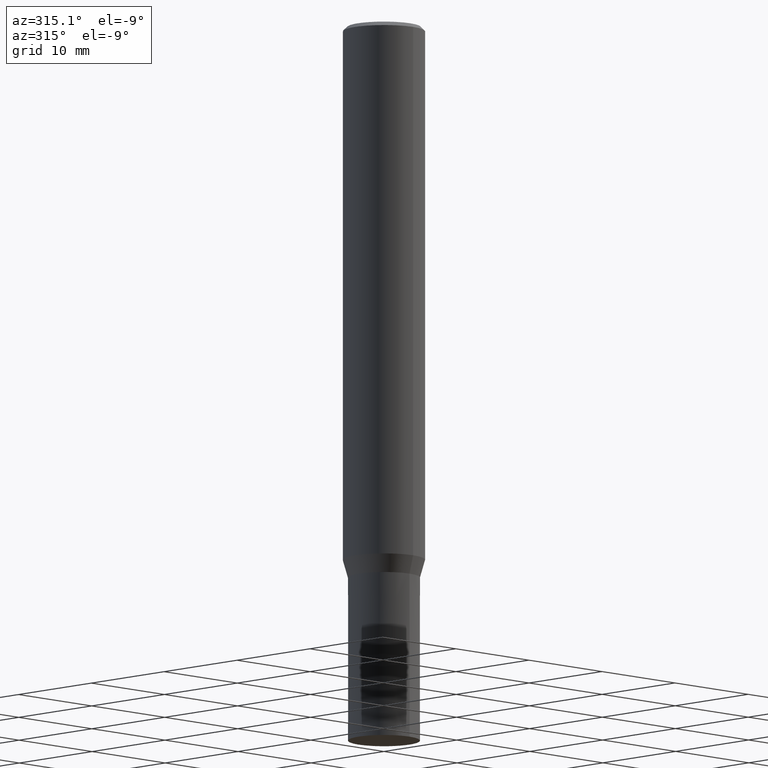
[diagram: clean part render]
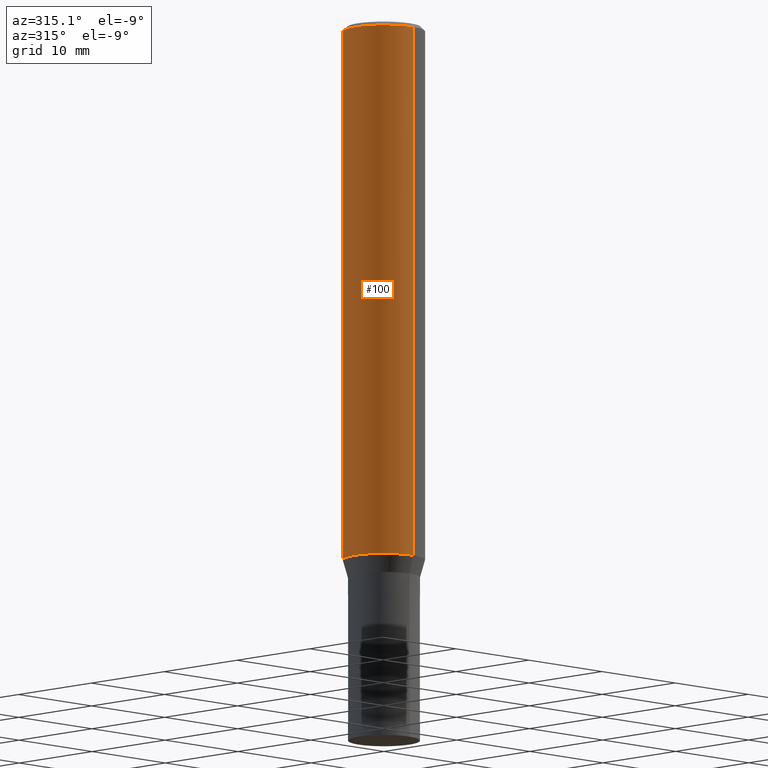
[diagram: same view with one face highlighted and labeled with its STEP entity id]
A machine part, auxiliary view. The second image highlights one B-rep face of the part: STEP entity #100.
In plain terms, the highlighted cylindrical surface (partial cylindrical patch) has radius 4 mm, axis along (-0, -0, 1).
Its self-contained STEP definition (entity closure, byte-faithful):
#92=VERTEX_POINT('',#214);
#100=ADVANCED_FACE('',(#224),#225,.T.);
#108=EDGE_CURVE('',#120,#172,#234,.T.);
#112=EDGE_CURVE('',#138,#172,#239,.T.);
#120=VERTEX_POINT('',#247);
#138=VERTEX_POINT('',#266);
#164=EDGE_CURVE('',#92,#138,#295,.T.);
#166=EDGE_CURVE('',#120,#92,#297,.T.);
#172=VERTEX_POINT('',#304);
#214=CARTESIAN_POINT('',(4.89842541528951E-016,-4.0,-0.399999999999999));
#224=FACE_OUTER_BOUND('',#355,.T.);
#225=CYLINDRICAL_SURFACE('',#356,4.0);
#234=CIRCLE('',#368,4.0);
#239=LINE('',#374,#375);
#247=CARTESIAN_POINT('',(4.89842541528951E-016,-4.0,-52.256));
#266=CARTESIAN_POINT('',(0.0,4.0,-0.399999999999999));
#295=CIRCLE('',#447,4.0);
#297=LINE('',#450,#451);
#304=CARTESIAN_POINT('',(0.0,4.0,-52.256));
#355=EDGE_LOOP('',(#505,#506,#507,#508));
#356=AXIS2_PLACEMENT_3D('',#509,#510,#511);
#368=AXIS2_PLACEMENT_3D('',#526,#527,#528);
#374=CARTESIAN_POINT('',(-4.89842541528951E-016,4.0,-26.328));
#375=VECTOR('',#535,1.0);
#447=AXIS2_PLACEMENT_3D('',#590,#591,#592);
#450=CARTESIAN_POINT('',(4.89842541528951E-016,-4.0,-26.328));
#451=VECTOR('',#593,1.0);
#505=ORIENTED_EDGE('',*,*,#112,.T.);
#506=ORIENTED_EDGE('',*,*,#108,.F.);
#507=ORIENTED_EDGE('',*,*,#166,.T.);
#508=ORIENTED_EDGE('',*,*,#164,.T.);
#509=CARTESIAN_POINT('',(0.0,0.0,-26.328));
#510=DIRECTION('',(-0.0,-0.0,1.0));
#511=DIRECTION('',(0.0,1.0,0.0));
#526=CARTESIAN_POINT('',(0.0,0.0,-52.256));
#527=DIRECTION('',(0.0,0.0,-1.0));
#528=DIRECTION('',(0.0,1.0,0.0));
#535=DIRECTION('',(0.0,0.0,-1.0));
#590=CARTESIAN_POINT('',(0.0,0.0,-0.399999999999999));
#591=DIRECTION('',(0.0,0.0,-1.0));
#592=DIRECTION('',(0.0,1.0,0.0));
#593=DIRECTION('',(-0.0,-0.0,1.0));